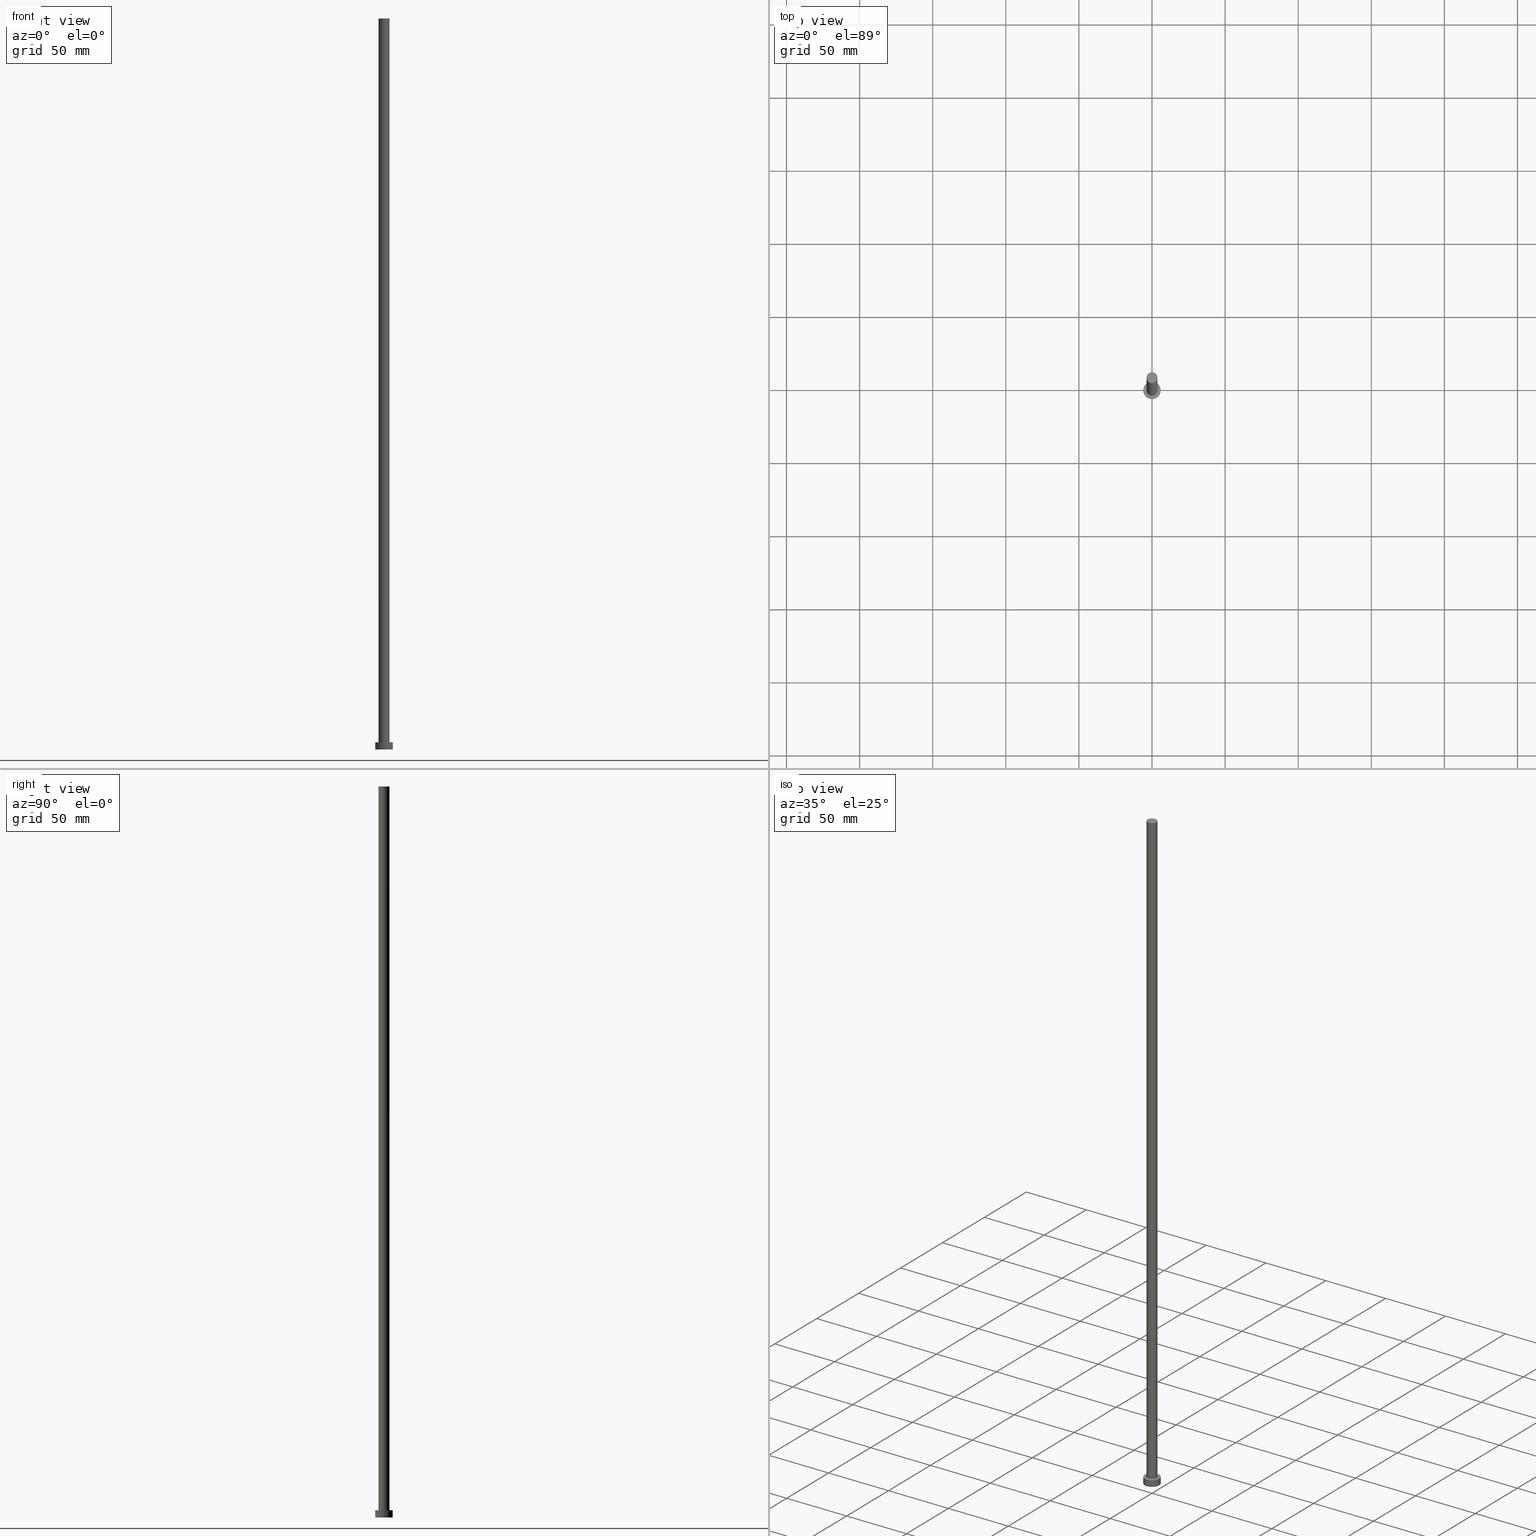
[diagram: canonical four-view strip — front | top / right | iso, engineering-drawing reading convention]
A machine part, canonical four-view strip (front | top / right | iso — engineering-drawing reading convention). The complete STEP part file that produces these views, byte-faithful:
ISO-10303-21;
HEADER;
FILE_DESCRIPTION (( 'STEP AP203' ),
    '1' );
FILE_NAME ('e780.STEP',
    '2023-02-12T11:20:54',
    ( '' ),
    ( '' ),
    'SwSTEP 2.0',
    'SolidWorks 2019',
    '' );
FILE_SCHEMA (( 'CONFIG_CONTROL_DESIGN' ));
ENDSEC;

DATA;
#1 = FACE_OUTER_BOUND ( 'NONE', #90, .T. ) ;
#2 = EDGE_CURVE ( 'NONE', #150, #92, #72, .T. ) ;
#3 = CARTESIAN_POINT ( 'NONE',  ( 0.000000000000000000, 0.000000000000000000, 500.0000000000000000 ) ) ;
#4 = AXIS2_PLACEMENT_3D ( 'NONE', #170, #255, #253 ) ;
#5 = ORIENTED_EDGE ( 'NONE', *, *, #157, .F. ) ;
#6 = AXIS2_PLACEMENT_3D ( 'NONE', #112, #114, #217 ) ;
#7 = LINE ( 'NONE', #80, #232 ) ;
#8 = COORDINATED_UNIVERSAL_TIME_OFFSET ( 1, 0, .AHEAD. ) ;
#9 = DIRECTION ( 'NONE',  ( 1.000000000000000000, 0.000000000000000000, 0.000000000000000000 ) ) ;
#10 = PERSON_AND_ORGANIZATION ( #245, #125 ) ;
#11 = PERSON_AND_ORGANIZATION_ROLE ( 'design_supplier' ) ;
#12 = ADVANCED_FACE ( 'NONE', ( #218 ), #115, .F. ) ;
#13 = PERSON_AND_ORGANIZATION_ROLE ( 'creator' ) ;
#14 = CARTESIAN_POINT ( 'NONE',  ( -6.000000000000000888, 0.000000000000000000, 5.000000000000000000 ) ) ;
#15 = CARTESIAN_POINT ( 'NONE',  ( 0.000000000000000000, 0.000000000000000000, 5.000000000000000000 ) ) ;
#16 = AXIS2_PLACEMENT_3D ( 'NONE', #141, #200, #187 ) ;
#17 = CIRCLE ( 'NONE', #145, 6.000000000000000888 ) ;
#18 = CC_DESIGN_APPROVAL ( #70, ( #177 ) ) ;
#19 = DIRECTION ( 'NONE',  ( 1.000000000000000000, 0.000000000000000000, -0.000000000000000000 ) ) ;
#20 = ORIENTED_EDGE ( 'NONE', *, *, #104, .T. ) ;
#21 = ORIENTED_EDGE ( 'NONE', *, *, #204, .F. ) ;
#22 = CLOSED_SHELL ( 'NONE', ( #194, #54, #137, #109, #12, #227, #153 ) ) ;
#23 = DIRECTION ( 'NONE',  ( -0.000000000000000000, -0.000000000000000000, -1.000000000000000000 ) ) ;
#24 = PRODUCT_RELATED_PRODUCT_CATEGORY ( 'detail', '', ( #28 ) ) ;
#25 = DIRECTION ( 'NONE',  ( -0.000000000000000000, -0.000000000000000000, -1.000000000000000000 ) ) ;
#26 = CARTESIAN_POINT ( 'NONE',  ( 0.000000000000000000, 0.000000000000000000, 500.0000000000000000 ) ) ;
#27 = CARTESIAN_POINT ( 'NONE',  ( 0.000000000000000000, 0.000000000000000000, 0.000000000000000000 ) ) ;
#28 = PRODUCT ( 'e780', 'e780', '', ( #188 ) ) ;
#29 = COORDINATED_UNIVERSAL_TIME_OFFSET ( 1, 0, .AHEAD. ) ;
#30 = AXIS2_PLACEMENT_3D ( 'NONE', #210, #240, #181 ) ;
#31 = CC_DESIGN_PERSON_AND_ORGANIZATION_ASSIGNMENT ( #192, #165, ( #28 ) ) ;
#32 = PRODUCT_DEFINITION_FORMATION_WITH_SPECIFIED_SOURCE ( 'LIBOVOLN�', '', #28, .NOT_KNOWN. ) ;
#33 = DIRECTION ( 'NONE',  ( -0.000000000000000000, -0.000000000000000000, -1.000000000000000000 ) ) ;
#34 = VERTEX_POINT ( 'NONE', #14 ) ;
#35 = DIRECTION ( 'NONE',  ( 0.000000000000000000, 0.000000000000000000, 1.000000000000000000 ) ) ;
#36 = VECTOR ( 'NONE', #25, 1000.000000000000000 ) ;
#37 = CC_DESIGN_APPROVAL ( #163, ( #32 ) ) ;
#38 = PLANE ( 'NONE',  #211 ) ;
#39 = DESIGN_CONTEXT ( 'detailed design', #46, 'design' ) ;
#40 = CIRCLE ( 'NONE', #30, 3.750000000000000000 ) ;
#41 = CARTESIAN_POINT ( 'NONE',  ( -3.750000000000000000, 0.000000000000000000, 500.0000000000000000 ) ) ;
#42 = DIRECTION ( 'NONE',  ( 0.000000000000000000, 0.000000000000000000, 1.000000000000000000 ) ) ;
#43 = CC_DESIGN_PERSON_AND_ORGANIZATION_ASSIGNMENT ( #119, #143, ( #66 ) ) ;
#44 = APPLICATION_PROTOCOL_DEFINITION ( 'international standard', 'config_control_design', 1994, #138 ) ;
#45 = SECURITY_CLASSIFICATION_LEVEL ( 'unclassified' ) ;
#46 = APPLICATION_CONTEXT ( 'configuration controlled 3d designs of mechanical parts and assemblies' ) ;
#47 =( NAMED_UNIT ( * ) SI_UNIT ( $, .STERADIAN. ) SOLID_ANGLE_UNIT ( ) );
#48 = CIRCLE ( 'NONE', #178, 6.000000000000000888 ) ;
#49 = LOCAL_TIME ( 12, 20, 54.00000000000000000, #147 ) ;
#50 = ORIENTED_EDGE ( 'NONE', *, *, #171, .T. ) ;
#51 = ORIENTED_EDGE ( 'NONE', *, *, #230, .F. ) ;
#52 = ORIENTED_EDGE ( 'NONE', *, *, #2, .T. ) ;
#53 = CYLINDRICAL_SURFACE ( 'NONE', #88, 3.750000000000000000 ) ;
#54 = ADVANCED_FACE ( 'NONE', ( #108 ), #105, .T. ) ;
#55 = DIRECTION ( 'NONE',  ( 1.000000000000000000, 0.000000000000000000, 0.000000000000000000 ) ) ;
#56 = DIRECTION ( 'NONE',  ( 0.000000000000000000, 0.000000000000000000, 1.000000000000000000 ) ) ;
#57 = VERTEX_POINT ( 'NONE', #249 ) ;
#58 = DIRECTION ( 'NONE',  ( 1.000000000000000000, 0.000000000000000000, 0.000000000000000000 ) ) ;
#59 = ORIENTED_EDGE ( 'NONE', *, *, #250, .T. ) ;
#60 = EDGE_CURVE ( 'NONE', #248, #34, #107, .T. ) ;
#61 = APPROVAL_DATE_TIME ( #162, #163 ) ;
#62 = APPROVAL_ROLE ( '' ) ;
#63 = DIRECTION ( 'NONE',  ( 0.000000000000000000, 0.000000000000000000, 1.000000000000000000 ) ) ;
#64 = APPROVAL_STATUS ( 'not_yet_approved' ) ;
#65 = DATE_AND_TIME ( #247, #49 ) ;
#66 = SECURITY_CLASSIFICATION ( '', '', #45 ) ;
#67 = CARTESIAN_POINT ( 'NONE',  ( 0.000000000000000000, 0.000000000000000000, 0.000000000000000000 ) ) ;
#68 = CARTESIAN_POINT ( 'NONE',  ( -3.750000000000000000, 0.000000000000000000, 5.000000000000000000 ) ) ;
#69 = ORIENTED_EDGE ( 'NONE', *, *, #60, .T. ) ;
#70 = APPROVAL ( #203, 'NEUR�EN�' ) ;
#71 = CARTESIAN_POINT ( 'NONE',  ( 0.000000000000000000, 0.000000000000000000, 5.000000000000000000 ) ) ;
#72 = CIRCLE ( 'NONE', #16, 3.750000000000000000 ) ;
#73 = CARTESIAN_POINT ( 'NONE',  ( 3.750000000000000000, 4.592425496802573972E-16, 500.0000000000000000 ) ) ;
#74 = ORIENTED_EDGE ( 'NONE', *, *, #171, .F. ) ;
#75 =( LENGTH_UNIT ( ) NAMED_UNIT ( * ) SI_UNIT ( .MILLI., .METRE. ) );
#76 = MANIFOLD_SOLID_BREP ( 'P�idat vysunut�m3', #22 ) ;
#77 = CARTESIAN_POINT ( 'NONE',  ( 0.000000000000000000, 0.000000000000000000, 0.000000000000000000 ) ) ;
#78 = ORIENTED_EDGE ( 'NONE', *, *, #190, .T. ) ;
#79 = DIRECTION ( 'NONE',  ( -0.000000000000000000, -0.000000000000000000, -1.000000000000000000 ) ) ;
#80 = CARTESIAN_POINT ( 'NONE',  ( 6.000000000000000888, 7.347880794884120722E-16, 5.000000000000000000 ) ) ;
#81 = DIRECTION ( 'NONE',  ( 1.000000000000000000, 0.000000000000000000, -0.000000000000000000 ) ) ;
#82 = COORDINATED_UNIVERSAL_TIME_OFFSET ( 1, 0, .AHEAD. ) ;
#83 = CC_DESIGN_SECURITY_CLASSIFICATION ( #66, ( #32 ) ) ;
#84 = DATE_AND_TIME ( #189, #98 ) ;
#85 = CALENDAR_DATE ( 2023, 12, 2 ) ;
#86 = AXIS2_PLACEMENT_3D ( 'NONE', #67, #63, #81 ) ;
#87 = ORIENTED_EDGE ( 'NONE', *, *, #60, .F. ) ;
#88 = AXIS2_PLACEMENT_3D ( 'NONE', #198, #133, #186 ) ;
#89 = FACE_OUTER_BOUND ( 'NONE', #180, .T. ) ;
#90 = EDGE_LOOP ( 'NONE', ( #21, #216, #52, #93 ) ) ;
#91 = CARTESIAN_POINT ( 'NONE',  ( 0.000000000000000000, 0.000000000000000000, 500.0000000000000000 ) ) ;
#92 = VERTEX_POINT ( 'NONE', #68 ) ;
#93 = ORIENTED_EDGE ( 'NONE', *, *, #190, .F. ) ;
#94 = PRODUCT_DEFINITION_SHAPE ( 'NONE', 'NONE',  #177 ) ;
#95 = DIRECTION ( 'NONE',  ( 1.000000000000000000, 0.000000000000000000, -0.000000000000000000 ) ) ;
#96 = LINE ( 'NONE', #41, #146 ) ;
#97 = EDGE_LOOP ( 'NONE', ( #207, #231 ) ) ;
#98 = LOCAL_TIME ( 12, 20, 54.00000000000000000, #29 ) ;
#99 = DIRECTION ( 'NONE',  ( 0.000000000000000000, 0.000000000000000000, 1.000000000000000000 ) ) ;
#100 = CALENDAR_DATE ( 2023, 12, 2 ) ;
#101 = AXIS2_PLACEMENT_3D ( 'NONE', #91, #140, #95 ) ;
#102 = CALENDAR_DATE ( 2023, 12, 2 ) ;
#103 = APPROVAL_DATE_TIME ( #65, #106 ) ;
#104 = EDGE_CURVE ( 'NONE', #34, #248, #48, .T. ) ;
#105 = CYLINDRICAL_SURFACE ( 'NONE', #224, 6.000000000000000888 ) ;
#106 = APPROVAL ( #64, 'NEUR�EN�' ) ;
#107 = CIRCLE ( 'NONE', #4, 6.000000000000000888 ) ;
#108 = FACE_OUTER_BOUND ( 'NONE', #176, .T. ) ;
#109 = ADVANCED_FACE ( 'NONE', ( #193, #206 ), #38, .T. ) ;
#110 = LINE ( 'NONE', #213, #134 ) ;
#111 = CIRCLE ( 'NONE', #6, 6.000000000000000888 ) ;
#112 = CARTESIAN_POINT ( 'NONE',  ( 0.000000000000000000, 0.000000000000000000, 0.000000000000000000 ) ) ;
#113 = ORIENTED_EDGE ( 'NONE', *, *, #212, .F. ) ;
#114 = DIRECTION ( 'NONE',  ( 0.000000000000000000, 0.000000000000000000, 1.000000000000000000 ) ) ;
#115 = PLANE ( 'NONE',  #86 ) ;
#116 = ADVANCED_BREP_SHAPE_REPRESENTATION ( 'e780', ( #76, #135 ), #220 ) ;
#117 = PERSON_AND_ORGANIZATION ( #245, #125 ) ;
#118 = DATE_AND_TIME ( #85, #236 ) ;
#119 = PERSON_AND_ORGANIZATION ( #245, #125 ) ;
#120 = AXIS2_PLACEMENT_3D ( 'NONE', #3, #42, #196 ) ;
#121 = PERSON_AND_ORGANIZATION ( #245, #125 ) ;
#122 = LOCAL_TIME ( 12, 20, 54.00000000000000000, #222 ) ;
#123 = APPROVAL_ROLE ( '' ) ;
#124 = CC_DESIGN_PERSON_AND_ORGANIZATION_ASSIGNMENT ( #121, #11, ( #32 ) ) ;
#125 = ORGANIZATION ( 'NEUR�EN�', 'NEUR�EN�', '' ) ;
#126 = DIRECTION ( 'NONE',  ( 0.000000000000000000, 0.000000000000000000, 1.000000000000000000 ) ) ;
#127 = EDGE_LOOP ( 'NONE', ( #154, #5, #78, #59 ) ) ;
#128 = ORIENTED_EDGE ( 'NONE', *, *, #157, .T. ) ;
#129 = CARTESIAN_POINT ( 'NONE',  ( 0.000000000000000000, 0.000000000000000000, 5.000000000000000000 ) ) ;
#130 = DIRECTION ( 'NONE',  ( -1.000000000000000000, 0.000000000000000000, 0.000000000000000000 ) ) ;
#131 = CARTESIAN_POINT ( 'NONE',  ( 0.000000000000000000, 0.000000000000000000, 5.000000000000000000 ) ) ;
#132 = ORIENTED_EDGE ( 'NONE', *, *, #104, .F. ) ;
#133 = DIRECTION ( 'NONE',  ( -0.000000000000000000, -0.000000000000000000, -1.000000000000000000 ) ) ;
#134 = VECTOR ( 'NONE', #23, 1000.000000000000000 ) ;
#135 = AXIS2_PLACEMENT_3D ( 'NONE', #27, #99, #9 ) ;
#136 = CARTESIAN_POINT ( 'NONE',  ( 6.000000000000000888, 7.347880794884120722E-16, 0.000000000000000000 ) ) ;
#137 = ADVANCED_FACE ( 'NONE', ( #89 ), #175, .T. ) ;
#138 = APPLICATION_CONTEXT ( 'configuration controlled 3d designs of mechanical parts and assemblies' ) ;
#139 = LINE ( 'NONE', #158, #36 ) ;
#140 = DIRECTION ( 'NONE',  ( 0.000000000000000000, 0.000000000000000000, 1.000000000000000000 ) ) ;
#141 = CARTESIAN_POINT ( 'NONE',  ( 0.000000000000000000, 0.000000000000000000, 5.000000000000000000 ) ) ;
#142 = APPROVAL_PERSON_ORGANIZATION ( #242, #70, #62 ) ;
#143 = PERSON_AND_ORGANIZATION_ROLE ( 'classification_officer' ) ;
#144 = APPLICATION_PROTOCOL_DEFINITION ( 'international standard', 'config_control_design', 1994, #46 ) ;
#145 = AXIS2_PLACEMENT_3D ( 'NONE', #77, #56, #58 ) ;
#146 = VECTOR ( 'NONE', #79, 1000.000000000000000 ) ;
#147 = COORDINATED_UNIVERSAL_TIME_OFFSET ( 1, 0, .AHEAD. ) ;
#148 = CC_DESIGN_DATE_AND_TIME_ASSIGNMENT ( #191, #199, ( #177 ) ) ;
#149 = SHAPE_DEFINITION_REPRESENTATION ( #94, #116 ) ;
#150 = VERTEX_POINT ( 'NONE', #195 ) ;
#151 = UNCERTAINTY_MEASURE_WITH_UNIT (LENGTH_MEASURE( 1.000000000000000082E-05 ), #75, 'distance_accuracy_value', 'NONE');
#152 = DIRECTION ( 'NONE',  ( -0.000000000000000000, -0.000000000000000000, -1.000000000000000000 ) ) ;
#153 = ADVANCED_FACE ( 'NONE', ( #183 ), #184, .T. ) ;
#154 = ORIENTED_EDGE ( 'NONE', *, *, #221, .F. ) ;
#155 = LOCAL_TIME ( 12, 20, 54.00000000000000000, #8 ) ;
#156 = CARTESIAN_POINT ( 'NONE',  ( -3.750000000000000000, 0.000000000000000000, 500.0000000000000000 ) ) ;
#157 = EDGE_CURVE ( 'NONE', #160, #214, #234, .T. ) ;
#158 = CARTESIAN_POINT ( 'NONE',  ( -6.000000000000000888, 0.000000000000000000, 5.000000000000000000 ) ) ;
#159 = DIRECTION ( 'NONE',  ( 0.000000000000000000, 0.000000000000000000, 1.000000000000000000 ) ) ;
#160 = VERTEX_POINT ( 'NONE', #156 ) ;
#161 = DIRECTION ( 'NONE',  ( -1.000000000000000000, 0.000000000000000000, 0.000000000000000000 ) ) ;
#162 = DATE_AND_TIME ( #100, #155 ) ;
#163 = APPROVAL ( #241, 'NEUR�EN�' ) ;
#164 = APPROVAL_PERSON_ORGANIZATION ( #10, #163, #123 ) ;
#165 = PERSON_AND_ORGANIZATION_ROLE ( 'design_owner' ) ;
#166 = DATE_TIME_ROLE ( 'classification_date' ) ;
#167 = APPROVAL_DATE_TIME ( #118, #70 ) ;
#168 = ORIENTED_EDGE ( 'NONE', *, *, #212, .T. ) ;
#169 = CIRCLE ( 'NONE', #228, 3.750000000000000000 ) ;
#170 = CARTESIAN_POINT ( 'NONE',  ( 0.000000000000000000, 0.000000000000000000, 5.000000000000000000 ) ) ;
#171 = EDGE_CURVE ( 'NONE', #226, #57, #17, .T. ) ;
#172 = AXIS2_PLACEMENT_3D ( 'NONE', #71, #152, #130 ) ;
#173 = DIRECTION ( 'NONE',  ( -1.000000000000000000, 0.000000000000000000, 0.000000000000000000 ) ) ;
#174 = EDGE_LOOP ( 'NONE', ( #113, #74 ) ) ;
#175 = CYLINDRICAL_SURFACE ( 'NONE', #172, 6.000000000000000888 ) ;
#176 = EDGE_LOOP ( 'NONE', ( #87, #254, #50, #209 ) ) ;
#177 = PRODUCT_DEFINITION ( 'NEZN�M�', '', #32, #39 ) ;
#178 = AXIS2_PLACEMENT_3D ( 'NONE', #131, #126, #229 ) ;
#179 = DIRECTION ( 'NONE',  ( -0.000000000000000000, -0.000000000000000000, -1.000000000000000000 ) ) ;
#180 = EDGE_LOOP ( 'NONE', ( #51, #132, #252, #168 ) ) ;
#181 = DIRECTION ( 'NONE',  ( 1.000000000000000000, 0.000000000000000000, 0.000000000000000000 ) ) ;
#182 = EDGE_CURVE ( 'NONE', #34, #57, #139, .T. ) ;
#183 = FACE_OUTER_BOUND ( 'NONE', #239, .T. ) ;
#184 = PLANE ( 'NONE',  #101 ) ;
#185 = APPROVAL_PERSON_ORGANIZATION ( #243, #106, #244 ) ;
#186 = DIRECTION ( 'NONE',  ( -1.000000000000000000, 0.000000000000000000, 0.000000000000000000 ) ) ;
#187 = DIRECTION ( 'NONE',  ( 1.000000000000000000, 0.000000000000000000, 0.000000000000000000 ) ) ;
#188 = MECHANICAL_CONTEXT ( 'NONE', #138, 'mechanical' ) ;
#189 = CALENDAR_DATE ( 2023, 12, 2 ) ;
#190 = EDGE_CURVE ( 'NONE', #160, #92, #96, .T. ) ;
#191 = DATE_AND_TIME ( #102, #122 ) ;
#192 = PERSON_AND_ORGANIZATION ( #245, #125 ) ;
#193 = FACE_BOUND ( 'NONE', #97, .T. ) ;
#194 = ADVANCED_FACE ( 'NONE', ( #1 ), #235, .T. ) ;
#195 = CARTESIAN_POINT ( 'NONE',  ( 3.750000000000000000, 4.592425496802573972E-16, 5.000000000000000000 ) ) ;
#196 = DIRECTION ( 'NONE',  ( 1.000000000000000000, 0.000000000000000000, 0.000000000000000000 ) ) ;
#197 = CC_DESIGN_APPROVAL ( #106, ( #66 ) ) ;
#198 = CARTESIAN_POINT ( 'NONE',  ( 0.000000000000000000, 0.000000000000000000, 500.0000000000000000 ) ) ;
#199 = DATE_TIME_ROLE ( 'creation_date' ) ;
#200 = DIRECTION ( 'NONE',  ( 0.000000000000000000, 0.000000000000000000, 1.000000000000000000 ) ) ;
#201 =( NAMED_UNIT ( * ) PLANE_ANGLE_UNIT ( ) SI_UNIT ( $, .RADIAN. ) );
#202 = CC_DESIGN_DATE_AND_TIME_ASSIGNMENT ( #84, #166, ( #66 ) ) ;
#203 = APPROVAL_STATUS ( 'not_yet_approved' ) ;
#204 = EDGE_CURVE ( 'NONE', #214, #160, #169, .T. ) ;
#205 = AXIS2_PLACEMENT_3D ( 'NONE', #26, #179, #161 ) ;
#206 = FACE_OUTER_BOUND ( 'NONE', #246, .T. ) ;
#207 = ORIENTED_EDGE ( 'NONE', *, *, #250, .F. ) ;
#208 = CC_DESIGN_PERSON_AND_ORGANIZATION_ASSIGNMENT ( #117, #13, ( #177 ) ) ;
#209 = ORIENTED_EDGE ( 'NONE', *, *, #182, .F. ) ;
#210 = CARTESIAN_POINT ( 'NONE',  ( 0.000000000000000000, 0.000000000000000000, 5.000000000000000000 ) ) ;
#211 = AXIS2_PLACEMENT_3D ( 'NONE', #129, #35, #19 ) ;
#212 = EDGE_CURVE ( 'NONE', #57, #226, #111, .T. ) ;
#213 = CARTESIAN_POINT ( 'NONE',  ( 3.750000000000000000, 4.592425496802573972E-16, 500.0000000000000000 ) ) ;
#214 = VERTEX_POINT ( 'NONE', #73 ) ;
#215 = FACE_OUTER_BOUND ( 'NONE', #127, .T. ) ;
#216 = ORIENTED_EDGE ( 'NONE', *, *, #221, .T. ) ;
#217 = DIRECTION ( 'NONE',  ( 1.000000000000000000, 0.000000000000000000, 0.000000000000000000 ) ) ;
#218 = FACE_OUTER_BOUND ( 'NONE', #174, .T. ) ;
#219 = DIRECTION ( 'NONE',  ( -0.000000000000000000, -0.000000000000000000, -1.000000000000000000 ) ) ;
#220 =( GEOMETRIC_REPRESENTATION_CONTEXT ( 3 ) GLOBAL_UNCERTAINTY_ASSIGNED_CONTEXT ( ( #151 ) ) GLOBAL_UNIT_ASSIGNED_CONTEXT ( ( #75, #201, #47 ) ) REPRESENTATION_CONTEXT ( 'NONE', 'WORKASPACE' ) );
#221 = EDGE_CURVE ( 'NONE', #214, #150, #110, .T. ) ;
#222 = COORDINATED_UNIVERSAL_TIME_OFFSET ( 1, 0, .AHEAD. ) ;
#223 = PERSON_AND_ORGANIZATION ( #245, #125 ) ;
#224 = AXIS2_PLACEMENT_3D ( 'NONE', #15, #33, #173 ) ;
#225 = PERSON_AND_ORGANIZATION_ROLE ( 'creator' ) ;
#226 = VERTEX_POINT ( 'NONE', #136 ) ;
#227 = ADVANCED_FACE ( 'NONE', ( #215 ), #53, .T. ) ;
#228 = AXIS2_PLACEMENT_3D ( 'NONE', #237, #159, #55 ) ;
#229 = DIRECTION ( 'NONE',  ( 1.000000000000000000, 0.000000000000000000, 0.000000000000000000 ) ) ;
#230 = EDGE_CURVE ( 'NONE', #248, #226, #7, .T. ) ;
#231 = ORIENTED_EDGE ( 'NONE', *, *, #2, .F. ) ;
#232 = VECTOR ( 'NONE', #219, 1000.000000000000000 ) ;
#233 = CARTESIAN_POINT ( 'NONE',  ( 6.000000000000000888, 7.347880794884120722E-16, 5.000000000000000000 ) ) ;
#234 = CIRCLE ( 'NONE', #120, 3.750000000000000000 ) ;
#235 = CYLINDRICAL_SURFACE ( 'NONE', #205, 3.750000000000000000 ) ;
#236 = LOCAL_TIME ( 12, 20, 54.00000000000000000, #82 ) ;
#237 = CARTESIAN_POINT ( 'NONE',  ( 0.000000000000000000, 0.000000000000000000, 500.0000000000000000 ) ) ;
#238 = CC_DESIGN_PERSON_AND_ORGANIZATION_ASSIGNMENT ( #223, #225, ( #32 ) ) ;
#239 = EDGE_LOOP ( 'NONE', ( #128, #251 ) ) ;
#240 = DIRECTION ( 'NONE',  ( 0.000000000000000000, 0.000000000000000000, 1.000000000000000000 ) ) ;
#241 = APPROVAL_STATUS ( 'not_yet_approved' ) ;
#242 = PERSON_AND_ORGANIZATION ( #245, #125 ) ;
#243 = PERSON_AND_ORGANIZATION ( #245, #125 ) ;
#244 = APPROVAL_ROLE ( '' ) ;
#245 = PERSON ( 'NEUR�EN�', 'NEUR�EN�', 'NEUR�EN�', ('NEUR�EN�'), ('NEUR�EN�'), ('NEUR�EN�') ) ;
#246 = EDGE_LOOP ( 'NONE', ( #20, #69 ) ) ;
#247 = CALENDAR_DATE ( 2023, 12, 2 ) ;
#248 = VERTEX_POINT ( 'NONE', #233 ) ;
#249 = CARTESIAN_POINT ( 'NONE',  ( -6.000000000000000888, 0.000000000000000000, 0.000000000000000000 ) ) ;
#250 = EDGE_CURVE ( 'NONE', #92, #150, #40, .T. ) ;
#251 = ORIENTED_EDGE ( 'NONE', *, *, #204, .T. ) ;
#252 = ORIENTED_EDGE ( 'NONE', *, *, #182, .T. ) ;
#253 = DIRECTION ( 'NONE',  ( 1.000000000000000000, 0.000000000000000000, 0.000000000000000000 ) ) ;
#254 = ORIENTED_EDGE ( 'NONE', *, *, #230, .T. ) ;
#255 = DIRECTION ( 'NONE',  ( 0.000000000000000000, 0.000000000000000000, 1.000000000000000000 ) ) ;
ENDSEC;
END-ISO-10303-21;
